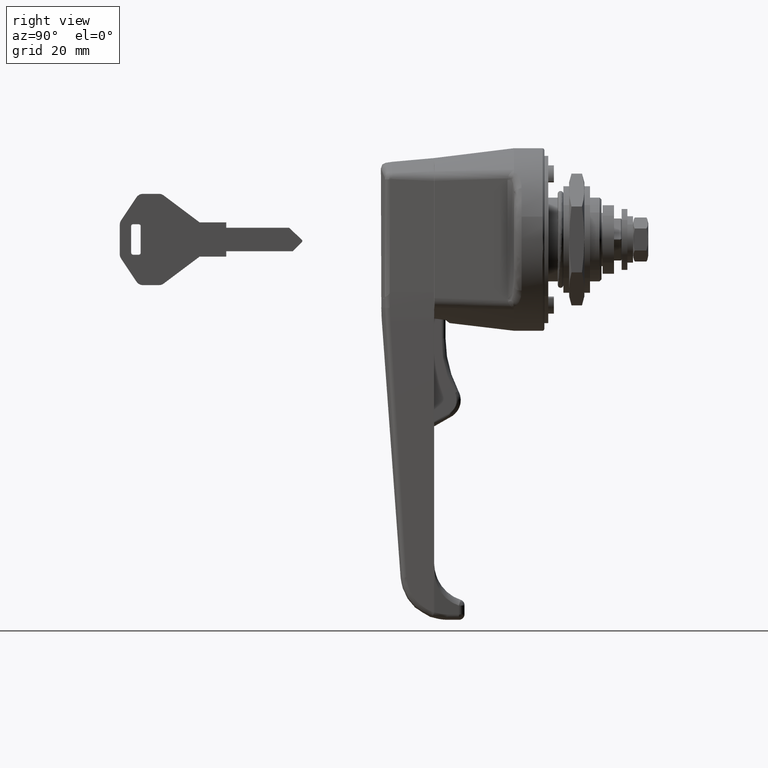
[diagram: clean part render]
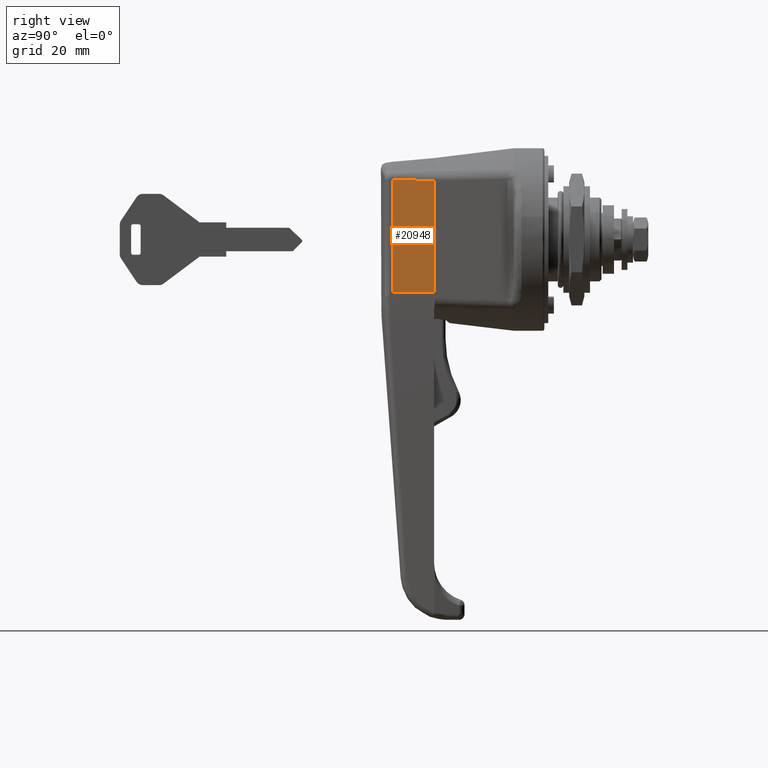
[diagram: same view with one face highlighted and labeled with its STEP entity id]
A machine part, right view. The second image highlights one B-rep face of the part: STEP entity #20948.
In plain terms, the highlighted face is a freeform B-spline surface patch.
Its self-contained STEP definition (entity closure, byte-faithful):
#20505=CARTESIAN_POINT('',(-30.000010000000000,-13.250000000000201,15.412667517703049));
#20506=VERTEX_POINT('',#20505);
#20523=CARTESIAN_POINT('',(-41.0,-11.520062113292120,15.864692415015750));
#20524=VERTEX_POINT('',#20523);
#20532=CARTESIAN_POINT('',(-30.000010000000000,-13.250000000000201,15.412667517703049));
#20533=CARTESIAN_POINT('',(-41.0,-11.520062113292120,15.864692415015750));
#20534=QUASI_UNIFORM_CURVE('',1,(#20532,#20533),.UNSPECIFIED.,.F.,.U.);
#20535=EDGE_CURVE('',#20506,#20524,#20534,.T.);
#20654=CARTESIAN_POINT('',(-41.305500394032236,-11.472016914520060,-13.922432209147040));
#20655=VERTEX_POINT('',#20654);
#20661=CARTESIAN_POINT('',(-41.0,-11.520062113292139,-13.686880000000000));
#20662=VERTEX_POINT('',#20661);
#20663=CARTESIAN_POINT('',(-41.305500394032236,-11.472016914520060,-13.922432209147040));
#20664=CARTESIAN_POINT('',(-41.0,-11.520062113292139,-13.686880000000000));
#20665=QUASI_UNIFORM_CURVE('',1,(#20663,#20664),.UNSPECIFIED.,.F.,.U.);
#20666=EDGE_CURVE('',#20655,#20662,#20665,.T.);
#20844=CARTESIAN_POINT('',(-30.000010000000000,-13.250000000000201,-13.989869574012420));
#20845=VERTEX_POINT('',#20844);
#20853=CARTESIAN_POINT('',(-41.305500394032236,-11.472016914520060,-13.922432209147040));
#20854=CARTESIAN_POINT('',(-30.000010000000000,-13.250000000000201,-13.989869574012420));
#20855=QUASI_UNIFORM_CURVE('',1,(#20853,#20854),.UNSPECIFIED.,.F.,.U.);
#20856=EDGE_CURVE('',#20655,#20845,#20855,.T.);
#20928=CARTESIAN_POINT('',(-29.435300286482182,-13.338810328773720,-15.481104607247170));
#20929=CARTESIAN_POINT('',(-41.870209096760433,-11.383206744710510,-15.481104607247170));
#20930=CARTESIAN_POINT('',(-29.435300286482182,-13.338810328773720,17.355928515932838));
#20931=CARTESIAN_POINT('',(-41.870209096760433,-11.383206744710510,17.355928515932838));
#20932=B_SPLINE_SURFACE_WITH_KNOTS('',1,1,((#20928,#20930),(#20929,#20931)),.UNSPECIFIED.,.F.,.F.,.U.,(2,2),(2,2),(0.0,12.587745727410310),(0.0,32.837033123180007),.UNSPECIFIED.);
#20933=CARTESIAN_POINT('',(-30.000010000000000,-13.250000000000201,-13.989869574012420));
#20934=CARTESIAN_POINT('',(-30.000010000000000,-13.250000000000201,15.412667517703049));
#20935=QUASI_UNIFORM_CURVE('',1,(#20933,#20934),.UNSPECIFIED.,.F.,.U.);
#20936=EDGE_CURVE('',#20845,#20506,#20935,.T.);
#20937=ORIENTED_EDGE('',*,*,#20936,.T.);
#20938=ORIENTED_EDGE('',*,*,#20535,.T.);
#20939=CARTESIAN_POINT('',(-41.0,-11.520062113292139,-13.686880000000000));
#20940=CARTESIAN_POINT('',(-41.0,-11.520062113292120,15.864692415015750));
#20941=QUASI_UNIFORM_CURVE('',1,(#20939,#20940),.UNSPECIFIED.,.F.,.U.);
#20942=EDGE_CURVE('',#20662,#20524,#20941,.T.);
#20943=ORIENTED_EDGE('',*,*,#20942,.F.);
#20944=ORIENTED_EDGE('',*,*,#20666,.F.);
#20945=ORIENTED_EDGE('',*,*,#20856,.T.);
#20946=EDGE_LOOP('',(#20937,#20938,#20943,#20944,#20945));
#20947=FACE_OUTER_BOUND('',#20946,.T.);
#20948=ADVANCED_FACE('',(#20947),#20932,.F.);